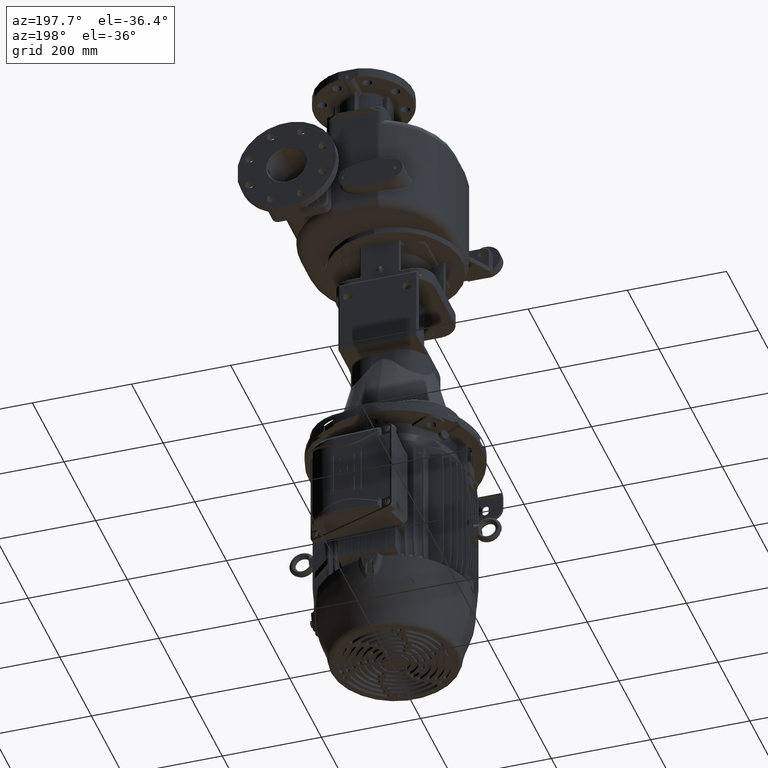
[diagram: clean part render]
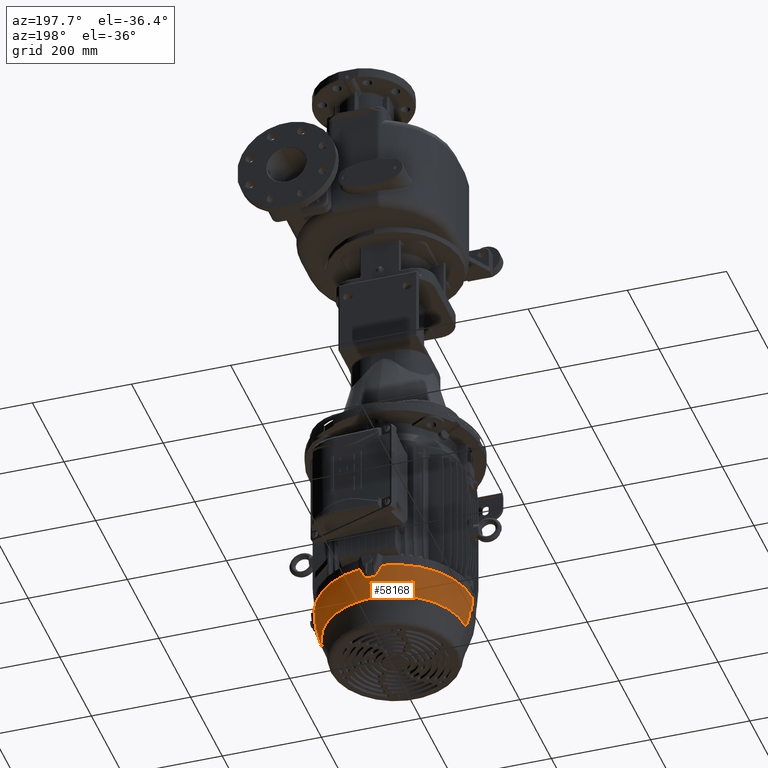
[diagram: same view with one face highlighted and labeled with its STEP entity id]
A machine part, auxiliary view. The second image highlights one B-rep face of the part: STEP entity #58168.
In plain terms, the highlighted face is a freeform B-spline surface patch.
Its self-contained STEP definition (entity closure, byte-faithful):
#1127=CARTESIAN_POINT('',(2.309660939871E1,3.126829410924E2,-9.265578225722E2));
#1137=CARTESIAN_POINT('',(1.555463572637E2,1.802331932274E2,-9.265578225722E2));
#1503=CARTESIAN_POINT('',(1.546830150154E2,1.676872819357E2,-9.493206795141E2));
#1504=CARTESIAN_POINT('',(1.547247066633E2,1.679800036518E2,-9.489432010325E2));
#1505=CARTESIAN_POINT('',(1.548053359435E2,1.685598074411E2,-9.481820268905E2));
#1506=CARTESIAN_POINT('',(1.549181215736E2,1.694138280103E2,-9.470197080510E2));
#1507=CARTESIAN_POINT('',(1.550221794262E2,1.702477758490E2,-9.458425125548E2));
#1508=CARTESIAN_POINT('',(1.551176398217E2,1.710623417835E2,-9.446494824438E2));
#1509=CARTESIAN_POINT('',(1.552044721590E2,1.718571149180E2,-9.434410885665E2));
#1510=CARTESIAN_POINT('',(1.552826334501E2,1.726314082134E2,-9.422183095364E2));
#1511=CARTESIAN_POINT('',(1.553521457711E2,1.733851458466E2,-9.409812168783E2));
#1512=CARTESIAN_POINT('',(1.554130004853E2,1.741179319046E2,-9.397303890820E2));
#1513=CARTESIAN_POINT('',(1.554652082723E2,1.748295545493E2,-9.384661274752E2));
#1514=CARTESIAN_POINT('',(1.555087732231E2,1.755197285461E2,-9.371888721492E2));
#1515=CARTESIAN_POINT('',(1.555437000312E2,1.761880977255E2,-9.358992175637E2));
#1516=CARTESIAN_POINT('',(1.555700002955E2,1.768343339637E2,-9.345977650893E2));
#1517=CARTESIAN_POINT('',(1.555876947189E2,1.774582265187E2,-9.332849130819E2));
#1518=CARTESIAN_POINT('',(1.555968054673E2,1.780596235636E2,-9.319609422182E2));
#1519=CARTESIAN_POINT('',(1.555973520208E2,1.786384384518E2,-9.306259666704E2));
#1520=CARTESIAN_POINT('',(1.555893481479E2,1.791945056558E2,-9.292802582639E2));
#1521=CARTESIAN_POINT('',(1.555728113860E2,1.797275174348E2,-9.279244172069E2));
#1522=CARTESIAN_POINT('',(1.555561170828E2,1.800672417858E2,-9.270143993035E2));
#1523=CARTESIAN_POINT('',(1.555463572637E2,1.802331932274E2,-9.265578225722E2));
#1530=CARTESIAN_POINT('',(-2.278002494873E1,1.58E2,-9.210608902496E2));
#1531=DIRECTION('',(0.E0,1.E0,0.E0));
#1532=DIRECTION('',(9.660341785750E-1,0.E0,-2.584143297591E-1));
#1533=AXIS2_PLACEMENT_3D('',#1530,#1531,#1532);
#1535=CARTESIAN_POINT('',(1.511151791804E2,1.629963658915E2,-9.672297882218E2));
#1536=CARTESIAN_POINT('',(1.511143174761E2,1.627595246944E2,-9.672626953797E2));
#1537=CARTESIAN_POINT('',(1.511127171724E2,1.622854471716E2,-9.673238085126E2));
#1538=CARTESIAN_POINT('',(1.511106852824E2,1.615730555316E2,-9.674014032616E2));
#1539=CARTESIAN_POINT('',(1.511090225051E2,1.608596674699E2,-9.674649021658E2));
#1540=CARTESIAN_POINT('',(1.511077289848E2,1.601454618143E2,-9.675142997141E2));
#1541=CARTESIAN_POINT('',(1.511068049165E2,1.594306517377E2,-9.675495884574E2));
#1542=CARTESIAN_POINT('',(1.511062504220E2,1.587154167584E2,-9.675707637471E2));
#1543=CARTESIAN_POINT('',(1.511061271948E2,1.582384985348E2,-9.675754696063E2));
#1544=CARTESIAN_POINT('',(1.511061271948E2,1.58E2,-9.675754696063E2));
#1546=CARTESIAN_POINT('',(1.525524052069E2,1.623952949745E2,-9.615109804543E2));
#1547=CARTESIAN_POINT('',(1.524032581129E2,1.624623541237E2,-9.621490056400E2));
#1548=CARTESIAN_POINT('',(1.520979329580E2,1.625962902571E2,-9.634233228263E2));
#1549=CARTESIAN_POINT('',(1.516188204007E2,1.627966626756E2,-9.653297390430E2));
#1550=CARTESIAN_POINT('',(1.512853991745E2,1.629298604976E2,-9.665970316653E2));
#1551=CARTESIAN_POINT('',(1.511151791804E2,1.629963658915E2,-9.672297882218E2));
#1553=CARTESIAN_POINT('',(-2.278002494873E1,1.58E2,-9.210608902496E2));
#1554=DIRECTION('',(0.E0,1.E0,0.E0));
#1555=DIRECTION('',(9.877699480425E-1,0.E0,-1.559183431931E-1));
#1556=AXIS2_PLACEMENT_3D('',#1553,#1554,#1555);
#1558=CARTESIAN_POINT('',(1.546830150154E2,1.676872819357E2,-9.493206795141E2));
#1559=CARTESIAN_POINT('',(1.547930415755E2,1.661015420024E2,-9.492569071972E2));
#1560=CARTESIAN_POINT('',(1.549188863404E2,1.636961412464E2,-9.491839679208E2));
#1561=CARTESIAN_POINT('',(1.550041300395E2,1.604628042911E2,-9.491345606062E2));
#1562=CARTESIAN_POINT('',(1.550185657253E2,1.588205831029E2,-9.491261913332E2));
#1563=CARTESIAN_POINT('',(1.550185658163E2,1.58E2,-9.491261912805E2));
#1565=CARTESIAN_POINT('',(8.634161712655E-1,1.58E2,-9.265578226274E2));
#1566=DIRECTION('',(0.E0,0.E0,-1.E0));
#1567=DIRECTION('',(1.422718546429E-1,9.898276210414E-1,0.E0));
#1568=AXIS2_PLACEMENT_3D('',#1565,#1566,#1567);
#1570=CARTESIAN_POINT('',(1.055069860933E1,3.118195987115E2,-9.493206801506E2));
#1571=CARTESIAN_POINT('',(1.118748150288E1,3.119106108025E2,-9.484974989449E2));
#1572=CARTESIAN_POINT('',(1.246860320895E1,3.120838785018E2,-9.467771751398E2));
#1573=CARTESIAN_POINT('',(1.492184348512E1,3.123747379244E2,-9.432076194446E2));
#1574=CARTESIAN_POINT('',(1.887248902558E1,3.127295612891E2,-9.366735491059E2));
#1575=CARTESIAN_POINT('',(2.159233478713E1,3.127711308969E2,-9.307055073583E2));
#1576=CARTESIAN_POINT('',(2.309660939871E1,3.126829410924E2,-9.265578225722E2));
#1578=CARTESIAN_POINT('',(-8.823866266774E0,3.118195987111E2,
-9.493206801505E2));
#1579=CARTESIAN_POINT('',(-7.238125625581E0,3.119296253447E2,
-9.492569077911E2));
#1580=CARTESIAN_POINT('',(-4.832726176586E0,3.120554700929E2,
-9.491839681437E2));
#1581=CARTESIAN_POINT('',(-1.598456657445E0,3.121407385631E2,
-9.491345455199E2));
#1582=CARTESIAN_POINT('',(8.662833872833E-1,3.121623793095E2,
-9.491220024001E2));
#1583=CARTESIAN_POINT('',(3.330651630874E0,3.121406403570E2,-9.491346024410E2));
#1584=CARTESIAN_POINT('',(6.563476935507E0,3.120552939266E2,-9.491840702511E2));
#1585=CARTESIAN_POINT('',(8.966773073551E0,3.119294994569E2,-9.492569807570E2));
#1586=CARTESIAN_POINT('',(1.055069860933E1,3.118195987115E2,-9.493206801506E2));
#1588=CARTESIAN_POINT('',(8.634161712655E-1,1.58E2,-9.265578226274E2));
#1589=DIRECTION('',(0.E0,0.E0,-1.E0));
#1590=DIRECTION('',(-1.E0,0.E0,0.E0));
#1591=AXIS2_PLACEMENT_3D('',#1588,#1589,#1590);
#1593=CARTESIAN_POINT('',(-1.493883468379E2,1.629963658915E2,
-9.672297882218E2));
#1594=CARTESIAN_POINT('',(-1.495585668320E2,1.629298604976E2,
-9.665970316653E2));
#1595=CARTESIAN_POINT('',(-1.498919880581E2,1.627966626756E2,
-9.653297390430E2));
#1596=CARTESIAN_POINT('',(-1.503711006155E2,1.625962902571E2,
-9.634233228263E2));
#1597=CARTESIAN_POINT('',(-1.506764257704E2,1.624623541237E2,
-9.621490056400E2));
#1598=CARTESIAN_POINT('',(-1.508255728644E2,1.623952949745E2,
-9.615109804543E2));
#1600=CARTESIAN_POINT('',(-1.493792948522E2,1.58E2,-9.675754696063E2));
#1601=CARTESIAN_POINT('',(-1.493792948522E2,1.582384985348E2,
-9.675754696063E2));
#1602=CARTESIAN_POINT('',(-1.493794180795E2,1.587154167584E2,
-9.675707637471E2));
#1603=CARTESIAN_POINT('',(-1.493799725740E2,1.594306517377E2,
-9.675495884574E2));
#1604=CARTESIAN_POINT('',(-1.493808966422E2,1.601454618143E2,
-9.675142997141E2));
#1605=CARTESIAN_POINT('',(-1.493821901626E2,1.608596674700E2,
-9.674649021658E2));
#1606=CARTESIAN_POINT('',(-1.493838529399E2,1.615730555316E2,
-9.674014032616E2));
#1607=CARTESIAN_POINT('',(-1.493858848299E2,1.622854471716E2,
-9.673238085126E2));
#1608=CARTESIAN_POINT('',(-1.493874851336E2,1.627595246944E2,
-9.672626953797E2));
#1609=CARTESIAN_POINT('',(-1.493883468379E2,1.629963658915E2,
-9.672297882218E2));
#1611=CARTESIAN_POINT('',(-6.993548746178E1,2.906200275243E2,
-9.672297764429E2));
#1612=CARTESIAN_POINT('',(-7.007819278951E1,2.907341896109E2,
-9.665970198696E2));
#1613=CARTESIAN_POINT('',(-7.036025333233E1,2.909563407879E2,
-9.653297445475E2));
#1614=CARTESIAN_POINT('',(-7.077333834794E1,2.912710787008E2,
-9.634233212535E2));
#1615=CARTESIAN_POINT('',(-7.104199276773E1,2.914685298688E2,
-9.621490056400E2));
#1616=CARTESIAN_POINT('',(-7.117464124151E1,2.915641654665E2,
-9.615109804543E2));
#1618=CARTESIAN_POINT('',(-7.858944509325E1,2.856236610518E2,
-9.672297867060E2));
#1619=CARTESIAN_POINT('',(-7.836808944520E1,2.857503892286E2,
-9.672652257331E2));
#1620=CARTESIAN_POINT('',(-7.792505854011E1,2.860041946280E2,
-9.673306527992E2));
#1621=CARTESIAN_POINT('',(-7.725945479337E1,2.863860074919E2,
-9.674124654097E2));
#1622=CARTESIAN_POINT('',(-7.659309633859E1,2.867687502657E2,
-9.674779293692E2));
#1623=CARTESIAN_POINT('',(-7.592617901642E1,2.871523103153E2,
-9.675270367402E2));
#1624=CARTESIAN_POINT('',(-7.525892807141E1,2.875365577946E2,
-9.675597792242E2));
#1625=CARTESIAN_POINT('',(-7.459156140823E1,2.879213670618E2,
-9.675761517930E2));
#1626=CARTESIAN_POINT('',(-7.392429929615E1,2.883066110233E2,
-9.675761517834E2));
#1627=CARTESIAN_POINT('',(-7.325736134102E1,2.886921628812E2,
-9.675597792444E2));
#1628=CARTESIAN_POINT('',(-7.259096778167E1,2.890778954350E2,
-9.675270366394E2));
#1629=CARTESIAN_POINT('',(-7.192533623569E1,2.894636827614E2,
-9.674779296911E2));
#1630=CARTESIAN_POINT('',(-7.126069231392E1,2.898493948368E2,
-9.674124641123E2));
#1631=CARTESIAN_POINT('',(-7.059722947269E1,2.902349179240E2,
-9.673306574822E2));
#1632=CARTESIAN_POINT('',(-7.015591514384E1,2.904916919763E2,
-9.672652154777E2));
#1633=CARTESIAN_POINT('',(-6.993548746178E1,2.906200275243E2,
-9.672297764429E2));
#1635=CARTESIAN_POINT('',(-7.878751545158E1,2.871688704920E2,
-9.615109804543E2));
#1636=CARTESIAN_POINT('',(-7.877101683139E1,2.870061757451E2,
-9.621490056400E2));
#1637=CARTESIAN_POINT('',(-7.873434634350E1,2.866747883727E2,
-9.634233226239E2));
#1638=CARTESIAN_POINT('',(-7.866831768931E1,2.861596783607E2,
-9.653297397514E2));
#1639=CARTESIAN_POINT('',(-7.861695972539E1,2.858043285811E2,
-9.665970301474E2));
#1640=CARTESIAN_POINT('',(-7.858944509325E1,2.856236610518E2,
-9.672297867060E2));
#1642=CARTESIAN_POINT('',(5.859782062794E0,3.082517630091E2,-9.672297882218E2));
#1643=CARTESIAN_POINT('',(5.793276668821E0,3.084219830033E2,-9.665970316653E2));
#1644=CARTESIAN_POINT('',(5.660078846897E0,3.087554042294E2,-9.653297390430E2));
#1645=CARTESIAN_POINT('',(5.459706428335E0,3.092345167867E2,-9.634233228263E2));
#1646=CARTESIAN_POINT('',(5.325770294990E0,3.095398419416E2,-9.621490056400E2));
#1647=CARTESIAN_POINT('',(5.258711145761E0,3.096889890356E2,-9.615109804543E2));
#1649=CARTESIAN_POINT('',(-4.132949720263E0,3.082517630091E2,
-9.672297882218E2));
#1650=CARTESIAN_POINT('',(-3.877886015530E0,3.082508350055E2,
-9.672652272489E2));
#1651=CARTESIAN_POINT('',(-3.367306949012E0,3.082491217953E2,
-9.673306521101E2));
#1652=CARTESIAN_POINT('',(-2.599970908012E0,3.082469794335E2,
-9.674124656041E2));
#1653=CARTESIAN_POINT('',(-1.831516148803E0,3.082452652057E2,
-9.674779293235E2));
#1654=CARTESIAN_POINT('',(-1.062168814988E0,3.082439792823E2,
-9.675270367553E2));
#1655=CARTESIAN_POINT('',(-2.921888370854E-1,3.082431218907E2,
-9.675597792210E2));
#1656=CARTESIAN_POINT('',(4.781722363111E-1,3.082426931599E2,
-9.675761517912E2));
#1657=CARTESIAN_POINT('',(1.248660106307E0,3.082426931599E2,-9.675761517912E2));
#1658=CARTESIAN_POINT('',(2.019021179702E0,3.082431218907E2,-9.675597792210E2));
#1659=CARTESIAN_POINT('',(2.789001157600E0,3.082439792823E2,-9.675270367553E2));
#1660=CARTESIAN_POINT('',(3.558348491409E0,3.082452652057E2,-9.674779293235E2));
#1661=CARTESIAN_POINT('',(4.326803250605E0,3.082469794335E2,-9.674124656041E2));
#1662=CARTESIAN_POINT('',(5.094139291582E0,3.082491217953E2,-9.673306521101E2));
#1663=CARTESIAN_POINT('',(5.604718358075E0,3.082508350055E2,-9.672652272489E2));
#1664=CARTESIAN_POINT('',(5.859782062794E0,3.082517630091E2,-9.672297882218E2));
#1666=CARTESIAN_POINT('',(-3.531878803230E0,3.096889890356E2,
-9.615109804543E2));
#1667=CARTESIAN_POINT('',(-3.598937952460E0,3.095398419416E2,
-9.621490056400E2));
#1668=CARTESIAN_POINT('',(-3.732874085804E0,3.092345167867E2,
-9.634233228263E2));
#1669=CARTESIAN_POINT('',(-3.933246504367E0,3.087554042294E2,
-9.653297390430E2));
#1670=CARTESIAN_POINT('',(-4.066444326290E0,3.084219830033E2,
-9.665970316653E2));
#1671=CARTESIAN_POINT('',(-4.132949720263E0,3.082517630091E2,
-9.672297882218E2));
#1678=CARTESIAN_POINT('',(8.634161712655E-1,1.58E2,-9.903489229696E2));
#1679=DIRECTION('',(0.E0,0.E0,-1.E0));
#1680=DIRECTION('',(-1.E0,0.E0,0.E0));
#1681=AXIS2_PLACEMENT_3D('',#1678,#1679,#1680);
#1693=CARTESIAN_POINT('',(2.450685729126E1,1.58E2,-9.210608902496E2));
#1694=DIRECTION('',(0.E0,-1.E0,0.E0));
#1695=DIRECTION('',(-9.660341785750E-1,0.E0,-2.584143297591E-1));
#1696=AXIS2_PLACEMENT_3D('',#1693,#1694,#1695);
#1707=CARTESIAN_POINT('',(-1.493792948522E2,1.58E2,-9.675754696063E2));
#1716=CARTESIAN_POINT('',(2.450685729126E1,1.58E2,-9.210608902496E2));
#1717=DIRECTION('',(0.E0,-1.E0,0.E0));
#1718=DIRECTION('',(-9.995335908367E-1,0.E0,-3.053851320982E-2));
#1719=AXIS2_PLACEMENT_3D('',#1716,#1717,#1718);
#1757=CARTESIAN_POINT('',(1.550185658163E2,1.58E2,-9.491261912805E2));
#1771=CARTESIAN_POINT('',(1.511061271948E2,1.58E2,-9.675754696063E2));
#1919=CARTESIAN_POINT('',(8.634161712655E-1,1.58E2,-9.5775E2));
#1920=DIRECTION('',(0.E0,0.E0,-1.E0));
#1921=DIRECTION('',(-1.E0,-6.996560021620E-13,0.E0));
#1922=AXIS2_PLACEMENT_3D('',#1919,#1920,#1921);
#1945=CARTESIAN_POINT('',(-1.517141805695E2,1.582183030139E2,-9.5775E2));
#1946=CARTESIAN_POINT('',(-1.517141064574E2,1.582701018655E2,-9.5775E2));
#1947=CARTESIAN_POINT('',(-1.517135063831E2,1.583737058268E2,
-9.577519167964E2));
#1948=CARTESIAN_POINT('',(-1.517112516889E2,1.585289107231E2,
-9.577605397020E2));
#1949=CARTESIAN_POINT('',(-1.517076447172E2,1.586837231315E2,
-9.577749020247E2));
#1950=CARTESIAN_POINT('',(-1.517026891713E2,1.588379439601E2,
-9.577949898168E2));
#1951=CARTESIAN_POINT('',(-1.516963901564E2,1.589913760877E2,
-9.578207834017E2));
#1952=CARTESIAN_POINT('',(-1.516887541840E2,1.591438220887E2,
-9.578522573620E2));
#1953=CARTESIAN_POINT('',(-1.516797892268E2,1.592950843650E2,
-9.578893803033E2));
#1954=CARTESIAN_POINT('',(-1.516695046608E2,1.594449662120E2,
-9.579321150876E2));
#1955=CARTESIAN_POINT('',(-1.516579116089E2,1.595932677925E2,
-9.579804173906E2));
#1956=CARTESIAN_POINT('',(-1.516450226239E2,1.597397918209E2,
-9.580342370075E2));
#1957=CARTESIAN_POINT('',(-1.516308517436E2,1.598843422026E2,
-9.580935176132E2));
#1958=CARTESIAN_POINT('',(-1.516154146319E2,1.600267229644E2,
-9.581581961645E2));
#1959=CARTESIAN_POINT('',(-1.515987285945E2,1.601667387554E2,
-9.582282028142E2));
#1960=CARTESIAN_POINT('',(-1.515808126033E2,1.603041951357E2,
-9.583034607948E2));
#1961=CARTESIAN_POINT('',(-1.515616873392E2,1.604388987735E2,
-9.583838862200E2));
#1962=CARTESIAN_POINT('',(-1.515413751719E2,1.605706579185E2,
-9.584693881518E2));
#1963=CARTESIAN_POINT('',(-1.515199007596E2,1.606992794538E2,
-9.585598660528E2));
#1964=CARTESIAN_POINT('',(-1.514972901014E2,1.608245755052E2,
-9.586552137542E2));
#1965=CARTESIAN_POINT('',(-1.514735710939E2,1.609463599418E2,
-9.587553170902E2));
#1966=CARTESIAN_POINT('',(-1.514487734554E2,1.610644494449E2,
-9.588600541960E2));
#1967=CARTESIAN_POINT('',(-1.514229287719E2,1.611786636701E2,
-9.589692952860E2));
#1968=CARTESIAN_POINT('',(-1.513960705133E2,1.612888256624E2,
-9.590829025600E2));
#1969=CARTESIAN_POINT('',(-1.513682339820E2,1.613947625070E2,
-9.592007303936E2));
#1970=CARTESIAN_POINT('',(-1.513394564392E2,1.614963052189E2,
-9.593226247768E2));
#1971=CARTESIAN_POINT('',(-1.513097775427E2,1.615932880358E2,
-9.594484214246E2));
#1972=CARTESIAN_POINT('',(-1.512792380680E2,1.616855531476E2,
-9.595779511679E2));
#1973=CARTESIAN_POINT('',(-1.512478807247E2,1.617729479653E2,
-9.597110364686E2));
#1974=CARTESIAN_POINT('',(-1.512157499289E2,1.618553263306E2,
-9.598474923519E2));
#1975=CARTESIAN_POINT('',(-1.511828917893E2,1.619325488559E2,
-9.599871264378E2));
#1976=CARTESIAN_POINT('',(-1.511493540105E2,1.620044835100E2,
-9.601297393215E2));
#1977=CARTESIAN_POINT('',(-1.511151858352E2,1.620710060306E2,
-9.602751247897E2));
#1978=CARTESIAN_POINT('',(-1.510804381898E2,1.621320000318E2,
-9.604230691732E2));
#1979=CARTESIAN_POINT('',(-1.510451634588E2,1.621873578446E2,
-9.605733522758E2));
#1980=CARTESIAN_POINT('',(-1.510094153919E2,1.622369811064E2,
-9.607257477421E2));
#1981=CARTESIAN_POINT('',(-1.509732473159E2,1.622807830489E2,
-9.608800306611E2));
#1982=CARTESIAN_POINT('',(-1.509367157229E2,1.623186835802E2,
-9.610359622494E2));
#1983=CARTESIAN_POINT('',(-1.508998856484E2,1.623506076970E2,
-9.611932668146E2));
#1984=CARTESIAN_POINT('',(-1.508628235788E2,1.623764966379E2,
-9.613516619511E2));
#1985=CARTESIAN_POINT('',(-1.508380031672E2,1.623897060923E2,
-9.614578057926E2));
#1986=CARTESIAN_POINT('',(-1.508255728644E2,1.623952949745E2,
-9.615109804543E2));
#3408=CARTESIAN_POINT('',(1.546830150154E2,1.676872819357E2,-9.493206795141E2));
#4370=CARTESIAN_POINT('',(8.634161712655E-1,1.58E2,-9.5775E2));
#4371=DIRECTION('',(0.E0,0.E0,-1.E0));
#4372=DIRECTION('',(9.999989764542E-1,1.430765690164E-3,0.E0));
#4373=AXIS2_PLACEMENT_3D('',#4370,#4371,#4372);
#4383=CARTESIAN_POINT('',(1.525524052069E2,1.623952949745E2,-9.615109804543E2));
#4384=CARTESIAN_POINT('',(1.525648354988E2,1.623897060973E2,-9.614578058394E2));
#4385=CARTESIAN_POINT('',(1.525896558923E2,1.623764966566E2,-9.613516620752E2));
#4386=CARTESIAN_POINT('',(1.526267179898E2,1.623506076974E2,-9.611932668193E2));
#4387=CARTESIAN_POINT('',(1.526635480150E2,1.623186836256E2,-9.610359624647E2));
#4388=CARTESIAN_POINT('',(1.527000795933E2,1.622807831219E2,-9.608800309387E2));
#4389=CARTESIAN_POINT('',(1.527362476784E2,1.622369811814E2,-9.607257479809E2));
#4390=CARTESIAN_POINT('',(1.527719957876E2,1.621873578653E2,-9.605733523341E2));
#4391=CARTESIAN_POINT('',(1.528072705147E2,1.621320000637E2,-9.604230692480E2));
#4392=CARTESIAN_POINT('',(1.528420182353E2,1.620710059262E2,-9.602751245446E2));
#4393=CARTESIAN_POINT('',(1.528761863690E2,1.620044834725E2,-9.601297392534E2));
#4394=CARTESIAN_POINT('',(1.529097240981E2,1.619325489304E2,-9.599871265812E2));
#4395=CARTESIAN_POINT('',(1.529425822441E2,1.618553263988E2,-9.598474924682E2));
#4396=CARTESIAN_POINT('',(1.529747130559E2,1.617729479977E2,-9.597110365168E2));
#4397=CARTESIAN_POINT('',(1.530060704355E2,1.616855530777E2,-9.595779510620E2));
#4398=CARTESIAN_POINT('',(1.530366099493E2,1.615932878400E2,-9.594484211529E2));
#4399=CARTESIAN_POINT('',(1.530662889220E2,1.614963047473E2,-9.593226241826E2));
#4400=CARTESIAN_POINT('',(1.530950664517E2,1.613947620349E2,-9.592007298552E2));
#4401=CARTESIAN_POINT('',(1.531229028954E2,1.612888254989E2,-9.590829023924E2));
#4402=CARTESIAN_POINT('',(1.531497611155E2,1.611786636631E2,-9.589692952815E2));
#4403=CARTESIAN_POINT('',(1.531756057837E2,1.610644495098E2,-9.588600542562E2));
#4404=CARTESIAN_POINT('',(1.532004034381E2,1.609463599382E2,-9.587553170834E2));
#4405=CARTESIAN_POINT('',(1.532241224891E2,1.608245752698E2,-9.586552135633E2));
#4406=CARTESIAN_POINT('',(1.532467331936E2,1.606992789380E2,-9.585598656674E2));
#4407=CARTESIAN_POINT('',(1.532682076727E2,1.605706569388E2,-9.584693874851E2));
#4408=CARTESIAN_POINT('',(1.532885198211E2,1.604388978250E2,-9.583838856338E2));
#4409=CARTESIAN_POINT('',(1.533076450399E2,1.603041944387E2,-9.583034603996E2));
#4410=CARTESIAN_POINT('',(1.533255610053E2,1.601667382026E2,-9.582282025276E2));
#4411=CARTESIAN_POINT('',(1.533422470127E2,1.600267226212E2,-9.581581960040E2));
#4412=CARTESIAN_POINT('',(1.533576841048E2,1.598843420174E2,-9.580935175350E2));
#4413=CARTESIAN_POINT('',(1.533718549814E2,1.597397916640E2,-9.580342369449E2));
#4414=CARTESIAN_POINT('',(1.533847439879E2,1.595932673683E2,-9.579804172386E2));
#4415=CARTESIAN_POINT('',(1.533963370607E2,1.594449654390E2,-9.579321148484E2));
#4416=CARTESIAN_POINT('',(1.534066216290E2,1.592950834397E2,-9.578893800557E2));
#4417=CARTESIAN_POINT('',(1.534155865876E2,1.591438209734E2,-9.578522571094E2));
#4418=CARTESIAN_POINT('',(1.534232225459E2,1.589913750480E2,-9.578207832086E2));
#4419=CARTESIAN_POINT('',(1.534295215475E2,1.588379430275E2,-9.577949896799E2));
#4420=CARTESIAN_POINT('',(1.534344770773E2,1.586837224625E2,-9.577749019542E2));
#4421=CARTESIAN_POINT('',(1.534380840368E2,1.585289103874E2,-9.577605396811E2));
#4422=CARTESIAN_POINT('',(1.534403387259E2,1.583737057500E2,-9.577519167958E2));
#4423=CARTESIAN_POINT('',(1.534409387999E2,1.582701018547E2,-9.5775E2));
#4424=CARTESIAN_POINT('',(1.534410129120E2,1.582183030139E2,-9.5775E2));
#10687=CARTESIAN_POINT('',(1.055069860933E1,3.118195987115E2,
-9.493206801506E2));
#11777=CARTESIAN_POINT('',(-2.136977705618E1,3.126829410924E2,
-9.265578225722E2));
#11799=CARTESIAN_POINT('',(-8.823866266774E0,3.118195987111E2,
-9.493206801505E2));
#11800=CARTESIAN_POINT('',(-9.116587982896E0,3.118612903590E2,
-9.489432016689E2));
#11801=CARTESIAN_POINT('',(-9.696391036730E0,3.119419198340E2,
-9.481820265951E2));
#11802=CARTESIAN_POINT('',(-1.055041190155E1,3.120547053858E2,
-9.470197081302E2));
#11803=CARTESIAN_POINT('',(-1.138435966096E1,3.121587632593E2,
-9.458425125336E2));
#11804=CARTESIAN_POINT('',(-1.219892561673E1,3.122542236493E2,
-9.446494824495E2));
#11805=CARTESIAN_POINT('',(-1.299369874555E1,3.123410559881E2,
-9.434410885649E2));
#11806=CARTESIAN_POINT('',(-1.376799204247E1,3.124192172787E2,
-9.422183095368E2));
#11807=CARTESIAN_POINT('',(-1.452172967525E1,3.124887295998E2,
-9.409812168782E2));
#11808=CARTESIAN_POINT('',(-1.525451573331E1,3.125495843140E2,
-9.397303890821E2));
#11809=CARTESIAN_POINT('',(-1.596613837803E1,3.126017921011E2,
-9.384661274752E2));
#11810=CARTESIAN_POINT('',(-1.665631237486E1,3.126453570518E2,
-9.371888721493E2));
#11811=CARTESIAN_POINT('',(-1.732468155425E1,3.126802838599E2,
-9.358992175637E2));
#11812=CARTESIAN_POINT('',(-1.797091779241E1,3.127065841242E2,
-9.345977650893E2));
#11813=CARTESIAN_POINT('',(-1.859481034744E1,3.127242785476E2,
-9.332849130819E2));
#11814=CARTESIAN_POINT('',(-1.919620739229E1,3.127333892960E2,
-9.319609422182E2));
#11815=CARTESIAN_POINT('',(-1.977502228051E1,3.127339358496E2,
-9.306259666704E2));
#11816=CARTESIAN_POINT('',(-2.033108948457E1,3.127259319766E2,
-9.292802582639E2));
#11817=CARTESIAN_POINT('',(-2.086410126350E1,3.127093952147E2,
-9.279244172069E2));
#11818=CARTESIAN_POINT('',(-2.120382561454E1,3.126927009116E2,
-9.270143993035E2));
#11819=CARTESIAN_POINT('',(-2.136977705618E1,3.126829410924E2,
-9.265578225722E2));
#11859=CARTESIAN_POINT('',(-8.823866266774E0,3.118195987111E2,
-9.493206801505E2));
#11899=CARTESIAN_POINT('',(-7.878751545158E1,2.871688704920E2,
-9.615109804543E2));
#11900=CARTESIAN_POINT('',(-7.878889048786E1,2.871824298791E2,
-9.614578058394E2));
#11901=CARTESIAN_POINT('',(-7.878986097345E1,2.872105296907E2,
-9.613516620752E2));
#11902=CARTESIAN_POINT('',(-7.878597152585E1,2.872555708884E2,
-9.611932668193E2));
#11903=CARTESIAN_POINT('',(-7.877673948127E1,2.873034286617E2,
-9.610359624647E2));
#11904=CARTESIAN_POINT('',(-7.876218247138E1,2.873540161884E2,
-9.608800309387E2));
#11905=CARTESIAN_POINT('',(-7.874233292070E1,2.874072396392E2,
-9.607257479809E2));
#11906=CARTESIAN_POINT('',(-7.871723192299E1,2.874630100679E2,
-9.605733523341E2));
#11907=CARTESIAN_POINT('',(-7.868692802410E1,2.875212377785E2,
-9.604230692480E2));
#11908=CARTESIAN_POINT('',(-7.865147941182E1,2.875818272560E2,
-9.602751245446E2));
#11909=CARTESIAN_POINT('',(-7.861095334387E1,2.876446789547E2,
-9.601297392534E2));
#11910=CARTESIAN_POINT('',(-7.856542506755E1,2.877096907511E2,
-9.599871265812E2));
#11911=CARTESIAN_POINT('',(-7.851497746640E1,2.877767580060E2,
-9.598474924682E2));
#11912=CARTESIAN_POINT('',(-7.845970108418E1,2.878457733059E2,
-9.597110365168E2));
#11913=CARTESIAN_POINT('',(-7.839969355319E1,2.879166270532E2,
-9.595779510620E2));
#11914=CARTESIAN_POINT('',(-7.833505927033E1,2.879892076668E2,
-9.594484211529E2));
#11915=CARTESIAN_POINT('',(-7.826590893461E1,2.880634019574E2,
-9.593226241826E2));
#11916=CARTESIAN_POINT('',(-7.819235913102E1,2.881390953855E2,
-9.592007298552E2));
#11917=CARTESIAN_POINT('',(-7.811453362150E1,2.882161707209E2,
-9.590829023924E2));
#11918=CARTESIAN_POINT('',(-7.803255978318E1,2.882945115396E2,
-9.589692952815E2));
#11919=CARTESIAN_POINT('',(-7.794656975903E1,2.883740007555E2,
-9.588600542562E2));
#11920=CARTESIAN_POINT('',(-7.785670001735E1,2.884545209399E2,
-9.587553170834E2));
#11921=CARTESIAN_POINT('',(-7.776309092621E1,2.885359545749E2,
-9.586552135633E2));
#11922=CARTESIAN_POINT('',(-7.766588647211E1,2.886181841853E2,
-9.585598656674E2));
#11923=CARTESIAN_POINT('',(-7.756523379289E1,2.887010926293E2,
-9.584693874851E2));
#11924=CARTESIAN_POINT('',(-7.746128312734E1,2.887845630227E2,
-9.583838856338E2));
#11925=CARTESIAN_POINT('',(-7.735418918226E1,2.888684776412E2,
-9.583034603996E2));
#11926=CARTESIAN_POINT('',(-7.724410657257E1,2.889527214405E2,
-9.582282025276E2));
#11927=CARTESIAN_POINT('',(-7.713119252585E1,2.890371797374E2,
-9.581581960040E2));
#11928=CARTESIAN_POINT('',(-7.701560585205E1,2.891217389533E2,
-9.580935175350E2));
#11929=CARTESIAN_POINT('',(-7.689750701211E1,2.892062864690E2,
-9.580342369449E2));
#11930=CARTESIAN_POINT('',(-7.677705775304E1,2.892907108240E2,
-9.579804172386E2));
#11931=CARTESIAN_POINT('',(-7.665442105121E1,2.893749016842E2,
-9.579321148484E2));
#11932=CARTESIAN_POINT('',(-7.652976171644E1,2.894587493812E2,
-9.578893800557E2));
#11933=CARTESIAN_POINT('',(-7.640324705726E1,2.895421444963E2,
-9.578522571094E2));
#11934=CARTESIAN_POINT('',(-7.627504299229E1,2.896249803929E2,
-9.578207832086E2));
#11935=CARTESIAN_POINT('',(-7.614531646557E1,2.897071514985E2,
-9.577949896799E2));
#11936=CARTESIAN_POINT('',(-7.601423530338E1,2.897885533957E2,
-9.577749019542E2));
#11937=CARTESIAN_POINT('',(-7.588196759335E1,2.898690831519E2,
-9.577605396811E2));
#11938=CARTESIAN_POINT('',(-7.574868377912E1,2.899486380885E2,
-9.577519167958E2));
#11939=CARTESIAN_POINT('',(-7.565926021081E1,2.900009597156E2,-9.5775E2));
#11940=CARTESIAN_POINT('',(-7.561443815490E1,2.900269233189E2,-9.5775E2));
#11966=CARTESIAN_POINT('',(8.634161712655E-1,1.58E2,-9.5775E2));
#11967=DIRECTION('',(0.E0,0.E0,-1.E0));
#11968=DIRECTION('',(-5.012385676617E-1,8.653091345227E-1,0.E0));
#11969=AXIS2_PLACEMENT_3D('',#11966,#11967,#11968);
#11991=CARTESIAN_POINT('',(-7.523632624330E1,2.902452263328E2,-9.5775E2));
#11992=CARTESIAN_POINT('',(-7.519143006592E1,2.902710615756E2,-9.5775E2));
#11993=CARTESIAN_POINT('',(-7.510140636638E1,2.903223438767E2,
-9.577519167964E2));
#11994=CARTESIAN_POINT('',(-7.496586763631E1,2.903979937024E2,
-9.577605397020E2));
#11995=CARTESIAN_POINT('',(-7.482999267193E1,2.904722761775E2,
-9.577749020247E2));
#11996=CARTESIAN_POINT('',(-7.469395574359E1,2.905450949632E2,
-9.577949898168E2));
#11997=CARTESIAN_POINT('',(-7.455793011593E1,2.906163559200E2,
-9.578207834017E2));
#11998=CARTESIAN_POINT('',(-7.442209002014E1,2.906859659744E2,
-9.578522573620E2));
#11999=CARTESIAN_POINT('',(-7.428661056761E1,2.907538332319E2,
-9.578893803033E2));
#12000=CARTESIAN_POINT('',(-7.415166679751E1,2.908198674600E2,
-9.579321150876E2));
#12001=CARTESIAN_POINT('',(-7.401743733554E1,2.908839783728E2,
-9.579804173906E2));
#12002=CARTESIAN_POINT('',(-7.388409931207E1,2.909460781985E2,
-9.580342370075E2));
#12003=CARTESIAN_POINT('',(-7.375182956926E1,2.910060810471E2,
-9.580935176132E2));
#12004=CARTESIAN_POINT('',(-7.362080565675E1,2.910639024971E2,
-9.581581961645E2));
#12005=CARTESIAN_POINT('',(-7.349120540610E1,2.911194598603E2,
-9.582282028142E2));
#12006=CARTESIAN_POINT('',(-7.336320669322E1,2.911726723470E2,
-9.583034607948E2));
#12007=CARTESIAN_POINT('',(-7.323698728883E1,2.912234612013E2,
-9.583838862200E2));
#12008=CARTESIAN_POINT('',(-7.311272443841E1,2.912717499209E2,
-9.584693881518E2));
#12009=CARTESIAN_POINT('',(-7.299059771532E1,2.913174633020E2,
-9.585598660528E2));
#12010=CARTESIAN_POINT('',(-7.287078282264E1,2.913605299232E2,
-9.586552137542E2));
#12011=CARTESIAN_POINT('',(-7.275345490305E1,2.914008808786E2,
-9.587553170902E2));
#12012=CARTESIAN_POINT('',(-7.263878757422E1,2.914384502452E2,
-9.588600541960E2));
#12013=CARTESIAN_POINT('',(-7.252695281191E1,2.914731752053E2,
-9.589692952860E2));
#12014=CARTESIAN_POINT('',(-7.241812059872E1,2.915049962672E2,
-9.590829025600E2));
#12015=CARTESIAN_POINT('',(-7.231245833455E1,2.915338575463E2,
-9.592007303936E2));
#12016=CARTESIAN_POINT('',(-7.221013099499E1,2.915597068191E2,
-9.593226247768E2));
#12017=CARTESIAN_POINT('',(-7.211130196358E1,2.915824955492E2,
-9.594484214246E2));
#12018=CARTESIAN_POINT('',(-7.201612829554E1,2.916021801442E2,
-9.595779511679E2));
#12019=CARTESIAN_POINT('',(-7.192476349166E1,2.916187212972E2,
-9.597110364686E2));
#12020=CARTESIAN_POINT('',(-7.183735633666E1,2.916320843944E2,
-9.598474923519E2));
#12021=CARTESIAN_POINT('',(-7.175405059818E1,2.916422396735E2,
-9.599871264378E2));
#12022=CARTESIAN_POINT('',(-7.167498447090E1,2.916491624320E2,
-9.601297393215E2));
#12023=CARTESIAN_POINT('',(-7.160029019046E1,2.916528331846E2,
-9.602751247897E2));
#12024=CARTESIAN_POINT('',(-7.153009401325E1,2.916532378415E2,
-9.604230691732E2));
#12025=CARTESIAN_POINT('',(-7.146451537561E1,2.916503679347E2,
-9.605733522758E2));
#12026=CARTESIAN_POINT('',(-7.140366633677E1,2.916442208316E2,
-9.607257477421E2));
#12027=CARTESIAN_POINT('',(-7.134764870385E1,2.916347993302E2,
-9.608800306611E2));
#12028=CARTESIAN_POINT('',(-7.129656008445E1,2.916221123083E2,
-9.610359622494E2));
#12029=CARTESIAN_POINT('',(-7.125049795106E1,2.916061785865E2,
-9.611932668146E2));
#12030=CARTESIAN_POINT('',(-7.120954643573E1,2.915870263632E2,
-9.613516619511E2));
#12031=CARTESIAN_POINT('',(-7.118569650683E1,2.915721359834E2,
-9.614578057926E2));
#12032=CARTESIAN_POINT('',(-7.117464124151E1,2.915641654665E2,
-9.615109804543E2));
#12042=CARTESIAN_POINT('',(-3.531878803230E0,3.096889890356E2,
-9.615109804543E2));
#12043=CARTESIAN_POINT('',(-3.526289925997E0,3.097014193275E2,
-9.614578058394E2));
#12044=CARTESIAN_POINT('',(-3.513080485372E0,3.097262397210E2,
-9.613516620752E2));
#12045=CARTESIAN_POINT('',(-3.487191526122E0,3.097633018186E2,
-9.611932668193E2));
#12046=CARTESIAN_POINT('',(-3.455267454338E0,3.098001318437E2,
-9.610359624647E2));
#12047=CARTESIAN_POINT('',(-3.417366950587E0,3.098366634221E2,
-9.608800309387E2));
#12048=CARTESIAN_POINT('',(-3.373565010089E0,3.098728315071E2,
-9.607257479809E2));
#12049=CARTESIAN_POINT('',(-3.323941694035E0,3.099085796163E2,
-9.605733523341E2));
#12050=CARTESIAN_POINT('',(-3.268583892467E0,3.099438543435E2,
-9.604230692480E2));
#12051=CARTESIAN_POINT('',(-3.207589754953E0,3.099786020640E2,
-9.602751245446E2));
#12052=CARTESIAN_POINT('',(-3.141067301258E0,3.100127701978E2,
-9.601297392534E2));
#12053=CARTESIAN_POINT('',(-3.069132759168E0,3.100463079269E2,
-9.599871265812E2));
#12054=CARTESIAN_POINT('',(-2.991910227548E0,3.100791660728E2,
-9.598474924682E2));
#12055=CARTESIAN_POINT('',(-2.909531826391E0,3.101112968846E2,
-9.597110365168E2));
#12056=CARTESIAN_POINT('',(-2.822136906476E0,3.101426542643E2,
-9.595779510620E2));
#12057=CARTESIAN_POINT('',(-2.729871668766E0,3.101731937780E2,
-9.594484211529E2));
#12058=CARTESIAN_POINT('',(-2.632888576019E0,3.102028727507E2,
-9.593226241826E2));
#12059=CARTESIAN_POINT('',(-2.531345863661E0,3.102316502805E2,
-9.592007298552E2));
#12060=CARTESIAN_POINT('',(-2.425409327648E0,3.102594867242E2,
-9.590829023924E2));
#12061=CARTESIAN_POINT('',(-2.315247491832E0,3.102863449442E2,
-9.589692952815E2));
#12062=CARTESIAN_POINT('',(-2.201033338503E0,3.103121896124E2,
-9.588600542562E2));
#12063=CARTESIAN_POINT('',(-2.082943766980E0,3.103369872668E2,
-9.587553170834E2));
#12064=CARTESIAN_POINT('',(-1.961159098520E0,3.103607063179E2,
-9.586552135633E2));
#12065=CARTESIAN_POINT('',(-1.835862766738E0,3.103833170223E2,
-9.585598656674E2));
#12066=CARTESIAN_POINT('',(-1.707240767549E0,3.104047915015E2,
-9.584693874851E2));
#12067=CARTESIAN_POINT('',(-1.575481653761E0,3.104251036498E2,
-9.583838856338E2));
#12068=CARTESIAN_POINT('',(-1.440778267475E0,3.104442288686E2,
-9.583034603996E2));
#12069=CARTESIAN_POINT('',(-1.303322031339E0,3.104621448341E2,
-9.582282025276E2));
#12070=CARTESIAN_POINT('',(-1.163306449937E0,3.104788308415E2,
-9.581581960040E2));
#12071=CARTESIAN_POINT('',(-1.020925846184E0,3.104942679336E2,
-9.580935175350E2));
#12072=CARTESIAN_POINT('',(-8.763754927508E-1,3.105084388101E2,
-9.580342369449E2));
#12073=CARTESIAN_POINT('',(-7.298511970604E-1,3.105213278166E2,
-9.579804172386E2));
#12074=CARTESIAN_POINT('',(-5.815492677009E-1,3.105329208895E2,
-9.579321148484E2));
#12075=CARTESIAN_POINT('',(-4.316672684793E-1,3.105432054577E2,
-9.578893800557E2));
#12076=CARTESIAN_POINT('',(-2.804048021286E-1,3.105521704164E2,
-9.578522571094E2));
#12077=CARTESIAN_POINT('',(-1.279588767070E-1,3.105598063747E2,
-9.578207832086E2));
#12078=CARTESIAN_POINT('',(2.547314376650E-2,3.105661053762E2,
-9.577949896799E2));
#12079=CARTESIAN_POINT('',(1.796937087866E-1,3.105710609060E2,
-9.577749019542E2));
#12080=CARTESIAN_POINT('',(3.345057838518E-1,3.105746678656E2,
-9.577605396811E2));
#12081=CARTESIAN_POINT('',(4.897104212247E-1,3.105769225546E2,
-9.577519167958E2));
#12082=CARTESIAN_POINT('',(5.933143165951E-1,3.105775226286E2,-9.5775E2));
#12083=CARTESIAN_POINT('',(6.451131573164E-1,3.105775967407E2,-9.5775E2));
#12109=CARTESIAN_POINT('',(8.634161712655E-1,1.58E2,-9.5775E2));
#12110=DIRECTION('',(0.E0,0.E0,-1.E0));
#12111=DIRECTION('',(-1.430765690175E-3,9.999989764542E-1,0.E0));
#12112=AXIS2_PLACEMENT_3D('',#12109,#12110,#12111);
#12130=CARTESIAN_POINT('',(1.081719185214E0,3.105775967407E2,-9.5775E2));
#12131=CARTESIAN_POINT('',(1.133518036762E0,3.105775226286E2,-9.5775E2));
#12132=CARTESIAN_POINT('',(1.237121998063E0,3.105769225544E2,
-9.577519167964E2));
#12133=CARTESIAN_POINT('',(1.392326894320E0,3.105746678602E2,
-9.577605397020E2));
#12134=CARTESIAN_POINT('',(1.547139302745E0,3.105710608884E2,
-9.577749020247E2));
#12135=CARTESIAN_POINT('',(1.701360131417E0,3.105661053426E2,
-9.577949898168E2));
#12136=CARTESIAN_POINT('',(1.854792258946E0,3.105598063277E2,
-9.578207834017E2));
#12137=CARTESIAN_POINT('',(2.007238259948E0,3.105521703552E2,
-9.578522573620E2));
#12138=CARTESIAN_POINT('',(2.158500536289E0,3.105432053981E2,
-9.578893803033E2));
#12139=CARTESIAN_POINT('',(2.308382383308E0,3.105329208320E2,
-9.579321150876E2));
#12140=CARTESIAN_POINT('',(2.456683963719E0,3.105213277802E2,
-9.579804173906E2));
#12141=CARTESIAN_POINT('',(2.603207992194E0,3.105084387951E2,
-9.580342370075E2));
#12142=CARTESIAN_POINT('',(2.747758373913E0,3.104942679149E2,
-9.580935176132E2));
#12143=CARTESIAN_POINT('',(2.890139135628E0,3.104788308032E2,
-9.581581961645E2));
#12144=CARTESIAN_POINT('',(3.030154926638E0,3.104621447658E2,
-9.582282028142E2));
#12145=CARTESIAN_POINT('',(3.167611306985E0,3.104442287746E2,
-9.583034607948E2));
#12146=CARTESIAN_POINT('',(3.302314944791E0,3.104251035105E2,
-9.583838862200E2));
#12147=CARTESIAN_POINT('',(3.434074089816E0,3.104047913432E2,
-9.584693881518E2));
#12148=CARTESIAN_POINT('',(3.562695625027E0,3.103833169309E2,
-9.585598660528E2));
#12149=CARTESIAN_POINT('',(3.687991676469E0,3.103607062726E2,
-9.586552137542E2));
#12150=CARTESIAN_POINT('',(3.809776113058E0,3.103369872652E2,
-9.587553170902E2));
#12151=CARTESIAN_POINT('',(3.927865616120E0,3.103121896267E2,
-9.588600541960E2));
#12152=CARTESIAN_POINT('',(4.042079841372E0,3.102863449431E2,
-9.589692952860E2));
#12153=CARTESIAN_POINT('',(4.152241833698E0,3.102594866845E2,
-9.590829025600E2));
#12154=CARTESIAN_POINT('',(4.258178678220E0,3.102316501533E2,
-9.592007303936E2));
#12155=CARTESIAN_POINT('',(4.359721390199E0,3.102028726105E2,
-9.593226247768E2));
#12156=CARTESIAN_POINT('',(4.456704207082E0,3.101731937140E2,
-9.594484214246E2));
#12157=CARTESIAN_POINT('',(4.548969318898E0,3.101426542393E2,
-9.595779511679E2));
#12158=CARTESIAN_POINT('',(4.636364136525E0,3.101112968960E2,
-9.597110364686E2));
#12159=CARTESIAN_POINT('',(4.718742501865E0,3.100791661002E2,
-9.598474923519E2));
#12160=CARTESIAN_POINT('',(4.795965027200E0,3.100463079606E2,
-9.599871264378E2));
#12161=CARTESIAN_POINT('',(4.867899681284E0,3.100127701817E2,
-9.601297393215E2));
#12162=CARTESIAN_POINT('',(4.934422201917E0,3.099786020065E2,
-9.602751247897E2));
#12163=CARTESIAN_POINT('',(4.995416203104E0,3.099438543610E2,
-9.604230691732E2));
#12164=CARTESIAN_POINT('',(5.050774015844E0,3.099085796300E2,
-9.605733522758E2));
#12165=CARTESIAN_POINT('',(5.100397277703E0,3.098728315631E2,
-9.607257477421E2));
#12166=CARTESIAN_POINT('',(5.144199220180E0,3.098366634871E2,
-9.608800306611E2));
#12167=CARTESIAN_POINT('',(5.182099751462E0,3.098001318941E2,
-9.610359622494E2));
#12168=CARTESIAN_POINT('',(5.214023868277E0,3.097633018197E2,
-9.611932668146E2));
#12169=CARTESIAN_POINT('',(5.239912809180E0,3.097262397500E2,
-9.613516619511E2));
#12170=CARTESIAN_POINT('',(5.253122263611E0,3.097014193384E2,
-9.614578057926E2));
#12171=CARTESIAN_POINT('',(5.258711145761E0,3.096889890356E2,
-9.615109804543E2));
#50983=CARTESIAN_POINT('',(-7.561443815490E1,2.900269233189E2,-9.5775E2));
#50984=CARTESIAN_POINT('',(-7.523632624330E1,2.902452263328E2,-9.5775E2));
#50985=VERTEX_POINT('',#50983);
#50986=VERTEX_POINT('',#50984);
#51110=CARTESIAN_POINT('',(-1.493883468379E2,1.629963658915E2,
-9.672297882218E2));
#51112=VERTEX_POINT('',#51110);
#51113=CARTESIAN_POINT('',(-1.508255728644E2,1.623952949745E2,
-9.615109804543E2));
#51114=VERTEX_POINT('',#51113);
#51117=CARTESIAN_POINT('',(-7.878751545158E1,2.871688704920E2,
-9.615109804543E2));
#51119=VERTEX_POINT('',#51117);
#51127=CARTESIAN_POINT('',(-1.517141805695E2,1.582183030139E2,-9.5775E2));
#51129=VERTEX_POINT('',#51127);
#51130=CARTESIAN_POINT('',(5.859782062794E0,3.082517630091E2,
-9.672297882218E2));
#51131=VERTEX_POINT('',#51130);
#51132=CARTESIAN_POINT('',(5.258711145761E0,3.096889890356E2,
-9.615109804543E2));
#51133=VERTEX_POINT('',#51132);
#51140=CARTESIAN_POINT('',(1.081719185214E0,3.105775967407E2,-9.5775E2));
#51141=VERTEX_POINT('',#51140);
#51149=CARTESIAN_POINT('',(-3.531878803230E0,3.096889890356E2,
-9.615109804543E2));
#51151=VERTEX_POINT('',#51149);
#51152=CARTESIAN_POINT('',(6.451131573164E-1,3.105775967407E2,-9.5775E2));
#51154=VERTEX_POINT('',#51152);
#51156=CARTESIAN_POINT('',(-4.132949720263E0,3.082517630091E2,
-9.672297882218E2));
#51157=VERTEX_POINT('',#51156);
#51389=VERTEX_POINT('',#1611);
#51390=VERTEX_POINT('',#1616);
#51556=VERTEX_POINT('',#1127);
#51561=VERTEX_POINT('',#1707);
#51566=CARTESIAN_POINT('',(-1.517143367398E2,1.579999999999E2,-9.5775E2));
#51567=VERTEX_POINT('',#51566);
#51571=VERTEX_POINT('',#1137);
#51572=VERTEX_POINT('',#1771);
#51573=VERTEX_POINT('',#1757);
#51577=CARTESIAN_POINT('',(1.534411690823E2,1.579999999999E2,-9.5775E2));
#51578=VERTEX_POINT('',#51577);
#51878=CARTESIAN_POINT('',(1.534410129120E2,1.582183030139E2,-9.5775E2));
#51879=VERTEX_POINT('',#51878);
#52006=CARTESIAN_POINT('',(1.433499498355E2,1.58E2,-9.903489229696E2));
#52007=CARTESIAN_POINT('',(-1.416231174929E2,1.58E2,-9.903489229696E2));
#52008=VERTEX_POINT('',#52006);
#52009=VERTEX_POINT('',#52007);
#52475=VERTEX_POINT('',#10687);
#52477=VERTEX_POINT('',#11777);
#52479=VERTEX_POINT('',#11859);
#52483=VERTEX_POINT('',#3408);
#52514=CARTESIAN_POINT('',(1.511151791804E2,1.629963658915E2,
-9.672297882218E2));
#52516=VERTEX_POINT('',#52514);
#52527=CARTESIAN_POINT('',(1.525524052069E2,1.623952949745E2,
-9.615109804543E2));
#52528=VERTEX_POINT('',#52527);
#52530=CARTESIAN_POINT('',(-7.858944509325E1,2.856236610518E2,
-9.672297867060E2));
#52531=VERTEX_POINT('',#52530);
#52604=CARTESIAN_POINT('',(-1.554091890593E2,1.58E2,-9.265578226274E2));
#52605=VERTEX_POINT('',#52604);
#58072=CARTESIAN_POINT('',(1.425601407543E2,1.490851977219E2,
-9.915584651188E2));
#58073=CARTESIAN_POINT('',(1.515065842766E2,1.485223352046E2,
-9.704989820630E2));
#58074=CARTESIAN_POINT('',(1.563318039969E2,1.482187581115E2,
-9.481275138929E2));
#58075=CARTESIAN_POINT('',(1.568628827668E2,1.481853454674E2,
-9.252457672065E2));
#58076=CARTESIAN_POINT('',(1.480462975715E2,2.362851632720E2,
-9.915584651188E2));
#58077=CARTESIAN_POINT('',(1.573391258973E2,2.412279295491E2,
-9.704989820630E2));
#58078=CARTESIAN_POINT('',(1.623511665350E2,2.438937859035E2,
-9.481275138929E2));
#58079=CARTESIAN_POINT('',(1.629028073992E2,2.441871983895E2,
-9.252457672065E2));
#58080=CARTESIAN_POINT('',(8.823579114505E1,2.999768835312E2,
-9.915584651188E2));
#58081=CARTESIAN_POINT('',(9.375230552041E1,3.089410157206E2,
-9.704989820630E2));
#58082=CARTESIAN_POINT('',(9.672761005183E1,3.137757757355E2,
-9.481275138929E2));
#58083=CARTESIAN_POINT('',(9.705508137172E1,3.143079045400E2,
-9.252457672065E2));
#58084=CARTESIAN_POINT('',(8.634161712653E-1,2.999768835312E2,
-9.915584651188E2));
#58085=CARTESIAN_POINT('',(8.634161712653E-1,3.089410157206E2,
-9.704989820630E2));
#58086=CARTESIAN_POINT('',(8.634161712654E-1,3.137757757355E2,
-9.481275138929E2));
#58087=CARTESIAN_POINT('',(8.634161712653E-1,3.143079045400E2,
-9.252457672065E2));
#58088=CARTESIAN_POINT('',(-8.650895880251E1,2.999768835312E2,
-9.915584651188E2));
#58089=CARTESIAN_POINT('',(-9.202547317788E1,3.089410157206E2,
-9.704989820630E2));
#58090=CARTESIAN_POINT('',(-9.500077770930E1,3.137757757355E2,
-9.481275138929E2));
#58091=CARTESIAN_POINT('',(-9.532824902919E1,3.143079045400E2,
-9.252457672065E2));
#58092=CARTESIAN_POINT('',(-1.463194652289E2,2.362851632720E2,
-9.915584651188E2));
#58093=CARTESIAN_POINT('',(-1.556122935548E2,2.412279295491E2,
-9.704989820630E2));
#58094=CARTESIAN_POINT('',(-1.606243341924E2,2.438937859035E2,
-9.481275138929E2));
#58095=CARTESIAN_POINT('',(-1.611759750566E2,2.441871983895E2,
-9.252457672065E2));
#58096=CARTESIAN_POINT('',(-1.408333084118E2,1.490851977219E2,
-9.915584651188E2));
#58097=CARTESIAN_POINT('',(-1.497797519340E2,1.485223352046E2,
-9.704989820630E2));
#58098=CARTESIAN_POINT('',(-1.546049716544E2,1.482187581115E2,
-9.481275138929E2));
#58099=CARTESIAN_POINT('',(-1.551360504243E2,1.481853454674E2,
-9.252457672065E2));
#58100=(BOUNDED_SURFACE()B_SPLINE_SURFACE(3,3,((#58072,#58073,#58074,#58075),(
#58076,#58077,#58078,#58079),(#58080,#58081,#58082,#58083),(#58084,#58085,
#58086,#58087),(#58088,#58089,#58090,#58091),(#58092,#58093,#58094,#58095),(
#58096,#58097,#58098,#58099)),.UNSPECIFIED.,.F.,.F.,.F.)B_SPLINE_SURFACE_WITH_KNOTS((4,3,4),(4,4),(0.E0,1.E0,2.E0),(0.E0,1.E0),.UNSPECIFIED.)GEOMETRIC_REPRESENTATION_ITEM()RATIONAL_B_SPLINE_SURFACE(((1.197995610844E0,1.183685106377E0,
1.183685106377E0,1.197995610844E0),(9.460548224940E-1,9.347538447268E-1,
9.347538447268E-1,9.460548224940E-1),(9.460548224940E-1,9.347538447268E-1,
9.347538447268E-1,9.460548224940E-1),(1.197995610844E0,1.183685106377E0,
1.183685106377E0,1.197995610844E0),(9.460548224940E-1,9.347538447268E-1,
9.347538447268E-1,9.460548224940E-1),(9.460548224940E-1,9.347538447268E-1,
9.347538447268E-1,9.460548224940E-1),(1.197995610844E0,1.183685106377E0,
1.183685106377E0,1.197995610844E0)))REPRESENTATION_ITEM('')SURFACE());
#58102=ORIENTED_EDGE('',*,*,#58101,.T.);
#58104=ORIENTED_EDGE('',*,*,#58103,.F.);
#58106=ORIENTED_EDGE('',*,*,#58105,.F.);
#58108=ORIENTED_EDGE('',*,*,#58107,.F.);
#58110=ORIENTED_EDGE('',*,*,#58109,.T.);
#58112=ORIENTED_EDGE('',*,*,#58111,.T.);
#58114=ORIENTED_EDGE('',*,*,#58113,.F.);
#58116=ORIENTED_EDGE('',*,*,#58115,.F.);
#58117=ORIENTED_EDGE('',*,*,#58063,.T.);
#58118=ORIENTED_EDGE('',*,*,#57596,.F.);
#58120=ORIENTED_EDGE('',*,*,#58119,.F.);
#58122=ORIENTED_EDGE('',*,*,#58121,.F.);
#58124=ORIENTED_EDGE('',*,*,#58123,.T.);
#58125=ORIENTED_EDGE('',*,*,#57724,.F.);
#58127=ORIENTED_EDGE('',*,*,#58126,.T.);
#58129=ORIENTED_EDGE('',*,*,#58128,.T.);
#58131=ORIENTED_EDGE('',*,*,#58130,.T.);
#58133=ORIENTED_EDGE('',*,*,#58132,.F.);
#58135=ORIENTED_EDGE('',*,*,#58134,.F.);
#58137=ORIENTED_EDGE('',*,*,#58136,.T.);
#58138=EDGE_LOOP('',(#58102,#58104,#58106,#58108,#58110,#58112,#58114,#58116,
#58117,#58118,#58120,#58122,#58124,#58125,#58127,#58129,#58131,#58133,#58135,
#58137));
#58139=FACE_OUTER_BOUND('',#58138,.F.);
#58141=ORIENTED_EDGE('',*,*,#58140,.F.);
#58143=ORIENTED_EDGE('',*,*,#58142,.F.);
#58145=ORIENTED_EDGE('',*,*,#58144,.F.);
#58147=ORIENTED_EDGE('',*,*,#58146,.T.);
#58149=ORIENTED_EDGE('',*,*,#58148,.T.);
#58151=ORIENTED_EDGE('',*,*,#58150,.T.);
#58152=EDGE_LOOP('',(#58141,#58143,#58145,#58147,#58149,#58151));
#58153=FACE_BOUND('',#58152,.F.);
#58155=ORIENTED_EDGE('',*,*,#58154,.F.);
#58157=ORIENTED_EDGE('',*,*,#58156,.F.);
#58159=ORIENTED_EDGE('',*,*,#58158,.F.);
#58161=ORIENTED_EDGE('',*,*,#58160,.T.);
#58163=ORIENTED_EDGE('',*,*,#58162,.T.);
#58165=ORIENTED_EDGE('',*,*,#58164,.T.);
#58166=EDGE_LOOP('',(#58155,#58157,#58159,#58161,#58163,#58165));
#58167=FACE_BOUND('',#58166,.F.);
#58168=ADVANCED_FACE('',(#58139,#58153,#58167),#58100,.T.);
#1524=B_SPLINE_CURVE_WITH_KNOTS('',3,(#1503,#1504,#1505,#1506,#1507,#1508,#1509,
#1510,#1511,#1512,#1513,#1514,#1515,#1516,#1517,#1518,#1519,#1520,#1521,#1522,
#1523),.UNSPECIFIED.,.F.,.F.,(4,1,1,1,1,1,1,1,1,1,1,1,1,1,1,1,1,1,4),(0.E0,
5.555555555556E-2,1.111111111111E-1,1.666666666667E-1,2.222222222222E-1,
2.777777777778E-1,3.333333333333E-1,3.888888888889E-1,4.444444444444E-1,5.E-1,
5.555555555556E-1,6.111111111111E-1,6.666666666667E-1,7.222222222222E-1,
7.777777777778E-1,8.333333333333E-1,8.888888888889E-1,9.444444444444E-1,1.E0),
.UNSPECIFIED.);
#1534=CIRCLE('',#1533,1.8E2);
#1545=B_SPLINE_CURVE_WITH_KNOTS('',3,(#1535,#1536,#1537,#1538,#1539,#1540,#1541,
#1542,#1543,#1544),.UNSPECIFIED.,.F.,.F.,(4,1,1,1,1,1,1,4),(0.E0,
1.428571428571E-1,2.857142857143E-1,4.285714285714E-1,5.714285714286E-1,
7.142857142857E-1,8.571428571429E-1,1.E0),.UNSPECIFIED.);
#1552=B_SPLINE_CURVE_WITH_KNOTS('',3,(#1546,#1547,#1548,#1549,#1550,#1551),
.UNSPECIFIED.,.F.,.F.,(4,1,1,4),(0.E0,3.333333333333E-1,6.666666666667E-1,1.E0),
.UNSPECIFIED.);
#1557=CIRCLE('',#1556,1.8E2);
#1564=B_SPLINE_CURVE_WITH_KNOTS('',3,(#1558,#1559,#1560,#1561,#1562,#1563),
.UNSPECIFIED.,.F.,.F.,(4,1,1,4),(0.E0,4.941422006073E-1,7.472151289024E-1,1.E0),
.UNSPECIFIED.);
#1569=CIRCLE('',#1568,1.562726052306E2);
#1577=B_SPLINE_CURVE_WITH_KNOTS('',3,(#1570,#1571,#1572,#1573,#1574,#1575,
#1576),.UNSPECIFIED.,.F.,.F.,(4,1,1,1,4),(0.E0,1.197505693140E-1,
2.455004879812E-1,4.970003253156E-1,1.E0),.UNSPECIFIED.);
#1587=B_SPLINE_CURVE_WITH_KNOTS('',3,(#1578,#1579,#1580,#1581,#1582,#1583,#1584,
#1585,#1586),.UNSPECIFIED.,.F.,.F.,(4,1,1,1,1,1,4),(0.E0,2.470000064174E-1,
3.735000033574E-1,5.000000002974E-1,6.264999972374E-1,7.529999941773E-1,1.E0),
.UNSPECIFIED.);
#1592=CIRCLE('',#1591,1.562726052306E2);
#1599=B_SPLINE_CURVE_WITH_KNOTS('',3,(#1593,#1594,#1595,#1596,#1597,#1598),
.UNSPECIFIED.,.F.,.F.,(4,1,1,4),(0.E0,3.333333333333E-1,6.666666666667E-1,1.E0),
.UNSPECIFIED.);
#1610=B_SPLINE_CURVE_WITH_KNOTS('',3,(#1600,#1601,#1602,#1603,#1604,#1605,#1606,
#1607,#1608,#1609),.UNSPECIFIED.,.F.,.F.,(4,1,1,1,1,1,1,4),(0.E0,
1.428571428571E-1,2.857142857143E-1,4.285714285714E-1,5.714285714286E-1,
7.142857142857E-1,8.571428571429E-1,1.E0),.UNSPECIFIED.);
#1617=B_SPLINE_CURVE_WITH_KNOTS('',3,(#1611,#1612,#1613,#1614,#1615,#1616),
.UNSPECIFIED.,.F.,.F.,(4,1,1,4),(0.E0,3.333333333333E-1,6.666666666667E-1,1.E0),
.UNSPECIFIED.);
#1634=B_SPLINE_CURVE_WITH_KNOTS('',3,(#1618,#1619,#1620,#1621,#1622,#1623,#1624,
#1625,#1626,#1627,#1628,#1629,#1630,#1631,#1632,#1633),.UNSPECIFIED.,.F.,.F.,(4,
1,1,1,1,1,1,1,1,1,1,1,1,4),(0.E0,7.692307692308E-2,1.538461538462E-1,
2.307692307692E-1,3.076923076923E-1,3.846153846154E-1,4.615384615385E-1,
5.384615384615E-1,6.153846153846E-1,6.923076923077E-1,7.692307692308E-1,
8.461538461538E-1,9.230769230769E-1,1.E0),.UNSPECIFIED.);
#1641=B_SPLINE_CURVE_WITH_KNOTS('',3,(#1635,#1636,#1637,#1638,#1639,#1640),
.UNSPECIFIED.,.F.,.F.,(4,1,1,4),(0.E0,3.333333333333E-1,6.666666666667E-1,1.E0),
.UNSPECIFIED.);
#1648=B_SPLINE_CURVE_WITH_KNOTS('',3,(#1642,#1643,#1644,#1645,#1646,#1647),
.UNSPECIFIED.,.F.,.F.,(4,1,1,4),(0.E0,3.333333333333E-1,6.666666666667E-1,1.E0),
.UNSPECIFIED.);
#1665=B_SPLINE_CURVE_WITH_KNOTS('',3,(#1649,#1650,#1651,#1652,#1653,#1654,#1655,
#1656,#1657,#1658,#1659,#1660,#1661,#1662,#1663,#1664),.UNSPECIFIED.,.F.,.F.,(4,
1,1,1,1,1,1,1,1,1,1,1,1,4),(0.E0,7.692307692308E-2,1.538461538462E-1,
2.307692307692E-1,3.076923076923E-1,3.846153846154E-1,4.615384615385E-1,
5.384615384615E-1,6.153846153846E-1,6.923076923077E-1,7.692307692308E-1,
8.461538461538E-1,9.230769230769E-1,1.E0),.UNSPECIFIED.);
#1672=B_SPLINE_CURVE_WITH_KNOTS('',3,(#1666,#1667,#1668,#1669,#1670,#1671),
.UNSPECIFIED.,.F.,.F.,(4,1,1,4),(0.E0,3.333333333333E-1,6.666666666667E-1,1.E0),
.UNSPECIFIED.);
#1682=CIRCLE('',#1681,1.424865336642E2);
#1697=CIRCLE('',#1696,1.8E2);
#1720=CIRCLE('',#1719,1.8E2);
#1923=CIRCLE('',#1922,1.525777529110E2);
#1987=B_SPLINE_CURVE_WITH_KNOTS('',3,(#1945,#1946,#1947,#1948,#1949,#1950,#1951,
#1952,#1953,#1954,#1955,#1956,#1957,#1958,#1959,#1960,#1961,#1962,#1963,#1964,
#1965,#1966,#1967,#1968,#1969,#1970,#1971,#1972,#1973,#1974,#1975,#1976,#1977,
#1978,#1979,#1980,#1981,#1982,#1983,#1984,#1985,#1986),.UNSPECIFIED.,.F.,.F.,(4,
1,1,1,1,1,1,1,1,1,1,1,1,1,1,1,1,1,1,1,1,1,1,1,1,1,1,1,1,1,1,1,1,1,1,1,1,1,1,4),(
0.E0,2.564102564103E-2,5.128205128205E-2,7.692307692308E-2,1.025641025641E-1,
1.282051282051E-1,1.538461538462E-1,1.794871794872E-1,2.051282051282E-1,
2.307692307692E-1,2.564102564103E-1,2.820512820513E-1,3.076923076923E-1,
3.333333333333E-1,3.589743589744E-1,3.846153846154E-1,4.102564102564E-1,
4.358974358974E-1,4.615384615385E-1,4.871794871795E-1,5.128205128205E-1,
5.384615384615E-1,5.641025641026E-1,5.897435897436E-1,6.153846153846E-1,
6.410256410256E-1,6.666666666667E-1,6.923076923077E-1,7.179487179487E-1,
7.435897435897E-1,7.692307692308E-1,7.948717948718E-1,8.205128205128E-1,
8.461538461538E-1,8.717948717949E-1,8.974358974359E-1,9.230769230769E-1,
9.487179487179E-1,9.743589743590E-1,1.E0),.UNSPECIFIED.);
#4374=CIRCLE('',#4373,1.525777529110E2);
#4425=B_SPLINE_CURVE_WITH_KNOTS('',3,(#4383,#4384,#4385,#4386,#4387,#4388,#4389,
#4390,#4391,#4392,#4393,#4394,#4395,#4396,#4397,#4398,#4399,#4400,#4401,#4402,
#4403,#4404,#4405,#4406,#4407,#4408,#4409,#4410,#4411,#4412,#4413,#4414,#4415,
#4416,#4417,#4418,#4419,#4420,#4421,#4422,#4423,#4424),.UNSPECIFIED.,.F.,.F.,(4,
1,1,1,1,1,1,1,1,1,1,1,1,1,1,1,1,1,1,1,1,1,1,1,1,1,1,1,1,1,1,1,1,1,1,1,1,1,1,4),(
0.E0,2.564102564103E-2,5.128205128205E-2,7.692307692308E-2,1.025641025641E-1,
1.282051282051E-1,1.538461538462E-1,1.794871794872E-1,2.051282051282E-1,
2.307692307692E-1,2.564102564103E-1,2.820512820513E-1,3.076923076923E-1,
3.333333333333E-1,3.589743589744E-1,3.846153846154E-1,4.102564102564E-1,
4.358974358974E-1,4.615384615385E-1,4.871794871795E-1,5.128205128205E-1,
5.384615384615E-1,5.641025641026E-1,5.897435897436E-1,6.153846153846E-1,
6.410256410256E-1,6.666666666667E-1,6.923076923077E-1,7.179487179487E-1,
7.435897435897E-1,7.692307692308E-1,7.948717948718E-1,8.205128205128E-1,
8.461538461538E-1,8.717948717949E-1,8.974358974359E-1,9.230769230769E-1,
9.487179487179E-1,9.743589743590E-1,1.E0),.UNSPECIFIED.);
#11820=B_SPLINE_CURVE_WITH_KNOTS('',3,(#11799,#11800,#11801,#11802,#11803,
#11804,#11805,#11806,#11807,#11808,#11809,#11810,#11811,#11812,#11813,#11814,
#11815,#11816,#11817,#11818,#11819),.UNSPECIFIED.,.F.,.F.,(4,1,1,1,1,1,1,1,1,1,
1,1,1,1,1,1,1,1,4),(0.E0,5.555555555556E-2,1.111111111111E-1,1.666666666667E-1,
2.222222222222E-1,2.777777777778E-1,3.333333333333E-1,3.888888888889E-1,
4.444444444444E-1,5.E-1,5.555555555556E-1,6.111111111111E-1,6.666666666667E-1,
7.222222222222E-1,7.777777777778E-1,8.333333333333E-1,8.888888888889E-1,
9.444444444444E-1,1.E0),.UNSPECIFIED.);
#11941=B_SPLINE_CURVE_WITH_KNOTS('',3,(#11899,#11900,#11901,#11902,#11903,
#11904,#11905,#11906,#11907,#11908,#11909,#11910,#11911,#11912,#11913,#11914,
#11915,#11916,#11917,#11918,#11919,#11920,#11921,#11922,#11923,#11924,#11925,
#11926,#11927,#11928,#11929,#11930,#11931,#11932,#11933,#11934,#11935,#11936,
#11937,#11938,#11939,#11940),.UNSPECIFIED.,.F.,.F.,(4,1,1,1,1,1,1,1,1,1,1,1,1,1,
1,1,1,1,1,1,1,1,1,1,1,1,1,1,1,1,1,1,1,1,1,1,1,1,1,4),(0.E0,2.564102564103E-2,
5.128205128205E-2,7.692307692308E-2,1.025641025641E-1,1.282051282051E-1,
1.538461538462E-1,1.794871794872E-1,2.051282051282E-1,2.307692307692E-1,
2.564102564103E-1,2.820512820513E-1,3.076923076923E-1,3.333333333333E-1,
3.589743589744E-1,3.846153846154E-1,4.102564102564E-1,4.358974358974E-1,
4.615384615385E-1,4.871794871795E-1,5.128205128205E-1,5.384615384615E-1,
5.641025641026E-1,5.897435897436E-1,6.153846153846E-1,6.410256410256E-1,
6.666666666667E-1,6.923076923077E-1,7.179487179487E-1,7.435897435897E-1,
7.692307692308E-1,7.948717948718E-1,8.205128205128E-1,8.461538461538E-1,
8.717948717949E-1,8.974358974359E-1,9.230769230769E-1,9.487179487179E-1,
9.743589743590E-1,1.E0),.UNSPECIFIED.);
#11970=CIRCLE('',#11969,1.525777529110E2);
#12033=B_SPLINE_CURVE_WITH_KNOTS('',3,(#11991,#11992,#11993,#11994,#11995,
#11996,#11997,#11998,#11999,#12000,#12001,#12002,#12003,#12004,#12005,#12006,
#12007,#12008,#12009,#12010,#12011,#12012,#12013,#12014,#12015,#12016,#12017,
#12018,#12019,#12020,#12021,#12022,#12023,#12024,#12025,#12026,#12027,#12028,
#12029,#12030,#12031,#12032),.UNSPECIFIED.,.F.,.F.,(4,1,1,1,1,1,1,1,1,1,1,1,1,1,
1,1,1,1,1,1,1,1,1,1,1,1,1,1,1,1,1,1,1,1,1,1,1,1,1,4),(0.E0,2.564102564103E-2,
5.128205128205E-2,7.692307692308E-2,1.025641025641E-1,1.282051282051E-1,
1.538461538462E-1,1.794871794872E-1,2.051282051282E-1,2.307692307692E-1,
2.564102564103E-1,2.820512820513E-1,3.076923076923E-1,3.333333333333E-1,
3.589743589744E-1,3.846153846154E-1,4.102564102564E-1,4.358974358974E-1,
4.615384615385E-1,4.871794871795E-1,5.128205128205E-1,5.384615384615E-1,
5.641025641026E-1,5.897435897436E-1,6.153846153846E-1,6.410256410256E-1,
6.666666666667E-1,6.923076923077E-1,7.179487179487E-1,7.435897435897E-1,
7.692307692308E-1,7.948717948718E-1,8.205128205128E-1,8.461538461538E-1,
8.717948717949E-1,8.974358974359E-1,9.230769230769E-1,9.487179487179E-1,
9.743589743590E-1,1.E0),.UNSPECIFIED.);
#12084=B_SPLINE_CURVE_WITH_KNOTS('',3,(#12042,#12043,#12044,#12045,#12046,
#12047,#12048,#12049,#12050,#12051,#12052,#12053,#12054,#12055,#12056,#12057,
#12058,#12059,#12060,#12061,#12062,#12063,#12064,#12065,#12066,#12067,#12068,
#12069,#12070,#12071,#12072,#12073,#12074,#12075,#12076,#12077,#12078,#12079,
#12080,#12081,#12082,#12083),.UNSPECIFIED.,.F.,.F.,(4,1,1,1,1,1,1,1,1,1,1,1,1,1,
1,1,1,1,1,1,1,1,1,1,1,1,1,1,1,1,1,1,1,1,1,1,1,1,1,4),(0.E0,2.564102564103E-2,
5.128205128205E-2,7.692307692308E-2,1.025641025641E-1,1.282051282051E-1,
1.538461538462E-1,1.794871794872E-1,2.051282051282E-1,2.307692307692E-1,
2.564102564103E-1,2.820512820513E-1,3.076923076923E-1,3.333333333333E-1,
3.589743589744E-1,3.846153846154E-1,4.102564102564E-1,4.358974358974E-1,
4.615384615385E-1,4.871794871795E-1,5.128205128205E-1,5.384615384615E-1,
5.641025641026E-1,5.897435897436E-1,6.153846153846E-1,6.410256410256E-1,
6.666666666667E-1,6.923076923077E-1,7.179487179487E-1,7.435897435897E-1,
7.692307692308E-1,7.948717948718E-1,8.205128205128E-1,8.461538461538E-1,
8.717948717949E-1,8.974358974359E-1,9.230769230769E-1,9.487179487179E-1,
9.743589743590E-1,1.E0),.UNSPECIFIED.);
#12113=CIRCLE('',#12112,1.525777529110E2);
#12172=B_SPLINE_CURVE_WITH_KNOTS('',3,(#12130,#12131,#12132,#12133,#12134,
#12135,#12136,#12137,#12138,#12139,#12140,#12141,#12142,#12143,#12144,#12145,
#12146,#12147,#12148,#12149,#12150,#12151,#12152,#12153,#12154,#12155,#12156,
#12157,#12158,#12159,#12160,#12161,#12162,#12163,#12164,#12165,#12166,#12167,
#12168,#12169,#12170,#12171),.UNSPECIFIED.,.F.,.F.,(4,1,1,1,1,1,1,1,1,1,1,1,1,1,
1,1,1,1,1,1,1,1,1,1,1,1,1,1,1,1,1,1,1,1,1,1,1,1,1,4),(0.E0,2.564102564103E-2,
5.128205128205E-2,7.692307692308E-2,1.025641025641E-1,1.282051282051E-1,
1.538461538462E-1,1.794871794872E-1,2.051282051282E-1,2.307692307692E-1,
2.564102564103E-1,2.820512820513E-1,3.076923076923E-1,3.333333333333E-1,
3.589743589744E-1,3.846153846154E-1,4.102564102564E-1,4.358974358974E-1,
4.615384615385E-1,4.871794871795E-1,5.128205128205E-1,5.384615384615E-1,
5.641025641026E-1,5.897435897436E-1,6.153846153846E-1,6.410256410256E-1,
6.666666666667E-1,6.923076923077E-1,7.179487179487E-1,7.435897435897E-1,
7.692307692308E-1,7.948717948718E-1,8.205128205128E-1,8.461538461538E-1,
8.717948717949E-1,8.974358974359E-1,9.230769230769E-1,9.487179487179E-1,
9.743589743590E-1,1.E0),.UNSPECIFIED.);
#57596=EDGE_CURVE('',#51556,#51571,#1569,.T.);
#57724=EDGE_CURVE('',#52605,#52477,#1592,.T.);
#58063=EDGE_CURVE('',#52483,#51571,#1524,.T.);
#58101=EDGE_CURVE('',#52009,#52008,#1682,.T.);
#58103=EDGE_CURVE('',#51572,#52008,#1534,.T.);
#58105=EDGE_CURVE('',#52516,#51572,#1545,.T.);
#58107=EDGE_CURVE('',#52528,#52516,#1552,.T.);
#58109=EDGE_CURVE('',#52528,#51879,#4425,.T.);
#58111=EDGE_CURVE('',#51879,#51578,#4374,.T.);
#58113=EDGE_CURVE('',#51573,#51578,#1557,.T.);
#58115=EDGE_CURVE('',#52483,#51573,#1564,.T.);
#58119=EDGE_CURVE('',#52475,#51556,#1577,.T.);
#58121=EDGE_CURVE('',#52479,#52475,#1587,.T.);
#58123=EDGE_CURVE('',#52479,#52477,#11820,.T.);
#58126=EDGE_CURVE('',#52605,#51567,#1720,.T.);
#58128=EDGE_CURVE('',#51567,#51129,#1923,.T.);
#58130=EDGE_CURVE('',#51129,#51114,#1987,.T.);
#58132=EDGE_CURVE('',#51112,#51114,#1599,.T.);
#58134=EDGE_CURVE('',#51561,#51112,#1610,.T.);
#58136=EDGE_CURVE('',#51561,#52009,#1697,.T.);
#58140=EDGE_CURVE('',#51389,#51390,#1617,.T.);
#58142=EDGE_CURVE('',#52531,#51389,#1634,.T.);
#58144=EDGE_CURVE('',#51119,#52531,#1641,.T.);
#58146=EDGE_CURVE('',#51119,#50985,#11941,.T.);
#58148=EDGE_CURVE('',#50985,#50986,#11970,.T.);
#58150=EDGE_CURVE('',#50986,#51390,#12033,.T.);
#58154=EDGE_CURVE('',#51131,#51133,#1648,.T.);
#58156=EDGE_CURVE('',#51157,#51131,#1665,.T.);
#58158=EDGE_CURVE('',#51151,#51157,#1672,.T.);
#58160=EDGE_CURVE('',#51151,#51154,#12084,.T.);
#58162=EDGE_CURVE('',#51154,#51141,#12113,.T.);
#58164=EDGE_CURVE('',#51141,#51133,#12172,.T.);